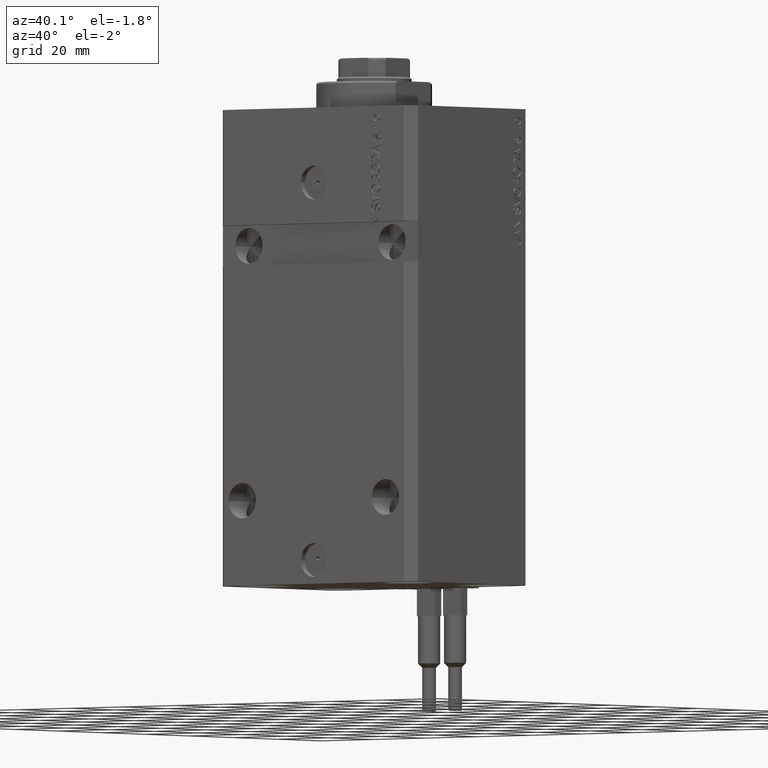
[diagram: clean part render]
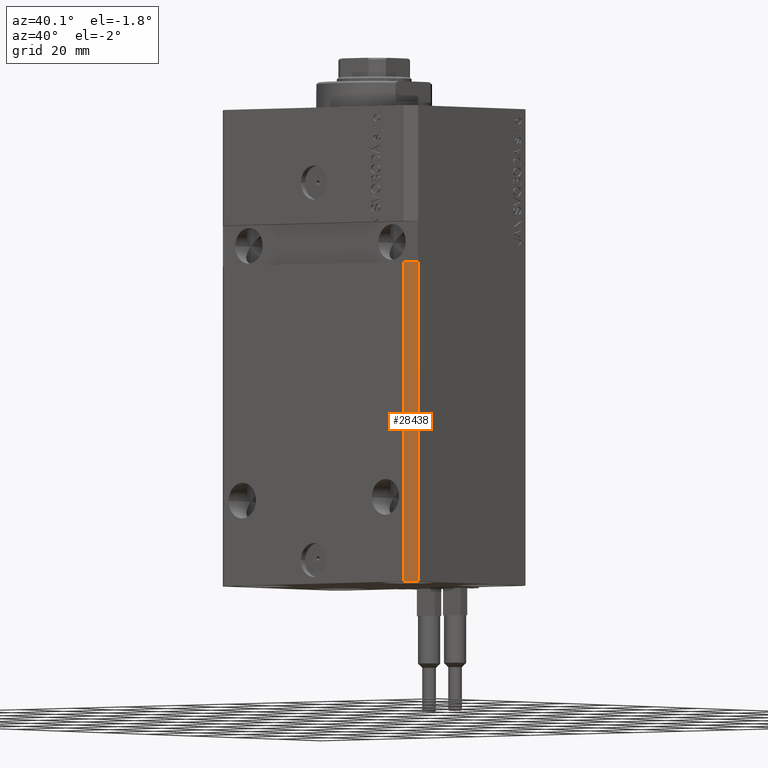
[diagram: same view with one face highlighted and labeled with its STEP entity id]
A machine part, auxiliary view. The second image highlights one B-rep face of the part: STEP entity #28438.
In plain terms, the highlighted planar face has unit normal (0.7071, -0.7071, 0).
Its self-contained STEP definition (entity closure, byte-faithful):
#6 = LINE ( 'NONE', #14859, #23881 ) ;
#4389 = ORIENTED_EDGE ( 'NONE', *, *, #21256, .T. ) ;
#4438 = FACE_OUTER_BOUND ( 'NONE', #39803, .T. ) ;
#5119 = EDGE_CURVE ( 'NONE', #23489, #16076, #34918, .T. ) ;
#5311 = AXIS2_PLACEMENT_3D ( 'NONE', #19048, #19294, #27335 ) ;
#5354 = CARTESIAN_POINT ( 'NONE',  ( 34.49999999999999289, -27.49999999999999645, -140.0000000000000000 ) ) ;
#6649 = VERTEX_POINT ( 'NONE', #41565 ) ;
#12231 = PLANE ( 'NONE',  #5311 ) ;
#14859 = CARTESIAN_POINT ( 'NONE',  ( 34.49999999999998579, -27.50000000000000000, -46.00000000000000000 ) ) ;
#16076 = VERTEX_POINT ( 'NONE', #24063 ) ;
#16724 = VECTOR ( 'NONE', #31503, 1000.000000000000000 ) ;
#17761 = ORIENTED_EDGE ( 'NONE', *, *, #5119, .F. ) ;
#18592 = CARTESIAN_POINT ( 'NONE',  ( 37.49999999999999289, -24.50000000000000000, -140.0000000000000000 ) ) ;
#19048 = CARTESIAN_POINT ( 'NONE',  ( 34.49999999999999289, -27.49999999999999645, -140.0000000000000000 ) ) ;
#19294 = DIRECTION ( 'NONE',  ( 0.7071067811865475727, -0.7071067811865475727, 0.000000000000000000 ) ) ;
#20515 = ORIENTED_EDGE ( 'NONE', *, *, #25963, .F. ) ;
#21256 = EDGE_CURVE ( 'NONE', #23489, #42996, #38729, .T. ) ;
#22008 = LINE ( 'NONE', #18592, #45771 ) ;
#23489 = VERTEX_POINT ( 'NONE', #40653 ) ;
#23881 = VECTOR ( 'NONE', #29725, 1000.000000000000114 ) ;
#24063 = CARTESIAN_POINT ( 'NONE',  ( 34.49999999999999289, -27.49999999999999289, -45.99999999999999289 ) ) ;
#24242 = CARTESIAN_POINT ( 'NONE',  ( 37.49999999999999289, -24.50000000000000000, -140.0000000000000000 ) ) ;
#25963 = EDGE_CURVE ( 'NONE', #16076, #6649, #6, .T. ) ;
#27335 = DIRECTION ( 'NONE',  ( 0.7071067811865474617, 0.7071067811865474617, 0.000000000000000000 ) ) ;
#28438 = ADVANCED_FACE ( 'NONE', ( #4438 ), #12231, .T. ) ;
#29360 = EDGE_CURVE ( 'NONE', #42996, #6649, #22008, .T. ) ;
#29725 = DIRECTION ( 'NONE',  ( 0.7071067811865474617, 0.7071067811865474617, 6.542051911182397555E-17 ) ) ;
#31503 = DIRECTION ( 'NONE',  ( 0.000000000000000000, 0.000000000000000000, 1.000000000000000000 ) ) ;
#34918 = LINE ( 'NONE', #37848, #16724 ) ;
#36865 = DIRECTION ( 'NONE',  ( 0.000000000000000000, 0.000000000000000000, 1.000000000000000000 ) ) ;
#37848 = CARTESIAN_POINT ( 'NONE',  ( 34.49999999999999289, -27.49999999999999645, -140.0000000000000000 ) ) ;
#38729 = LINE ( 'NONE', #5354, #45642 ) ;
#39803 = EDGE_LOOP ( 'NONE', ( #20515, #17761, #4389, #40177 ) ) ;
#40177 = ORIENTED_EDGE ( 'NONE', *, *, #29360, .T. ) ;
#40653 = CARTESIAN_POINT ( 'NONE',  ( 34.49999999999999289, -27.49999999999999645, -140.0000000000000000 ) ) ;
#41565 = CARTESIAN_POINT ( 'NONE',  ( 37.49999999999999289, -24.49999999999999289, -45.99999999999999289 ) ) ;
#42863 = DIRECTION ( 'NONE',  ( 0.7071067811865474617, 0.7071067811865474617, 0.000000000000000000 ) ) ;
#42996 = VERTEX_POINT ( 'NONE', #24242 ) ;
#45642 = VECTOR ( 'NONE', #42863, 1000.000000000000114 ) ;
#45771 = VECTOR ( 'NONE', #36865, 1000.000000000000000 ) ;